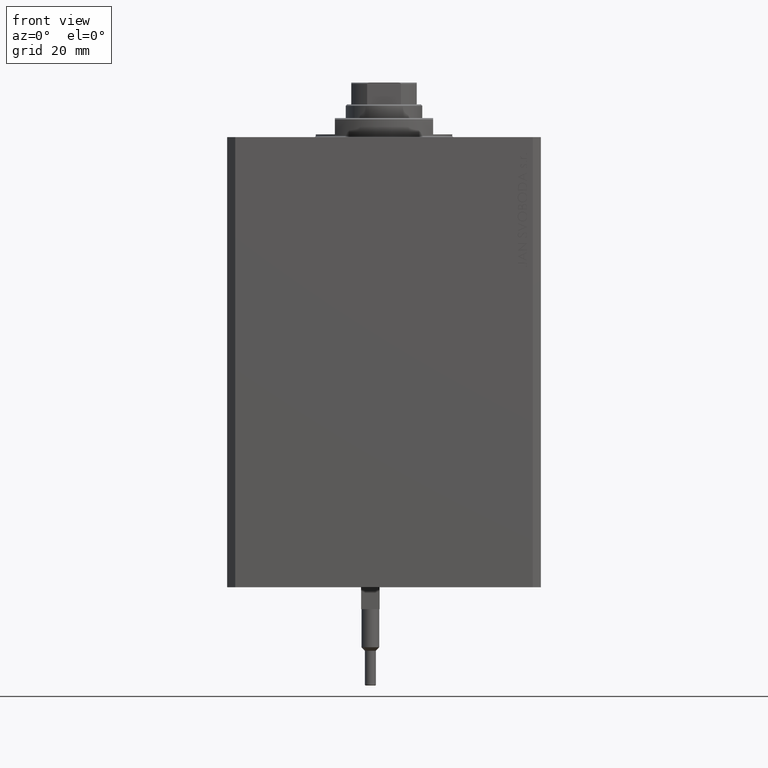
[diagram: clean part render]
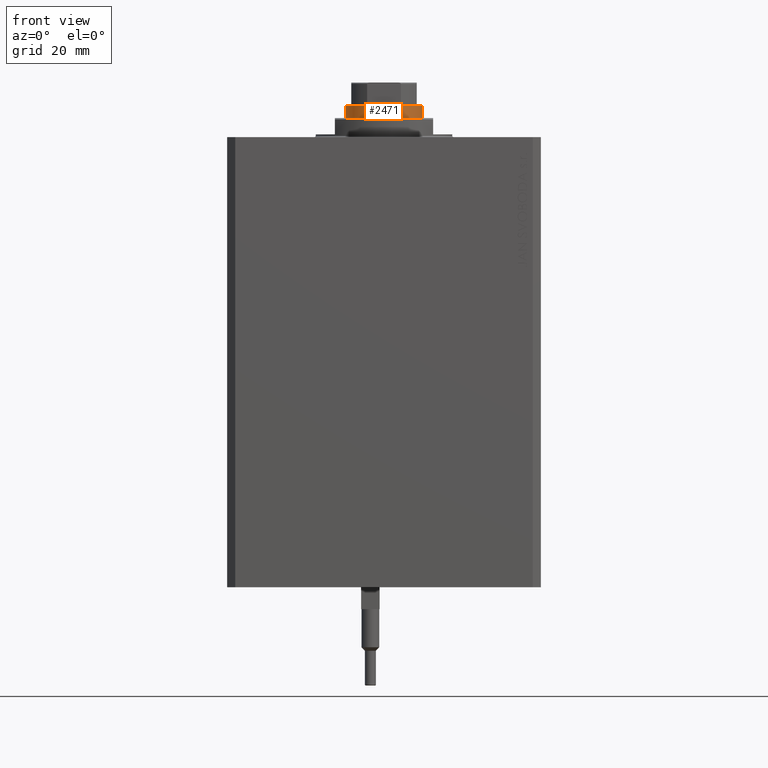
[diagram: same view with one face highlighted and labeled with its STEP entity id]
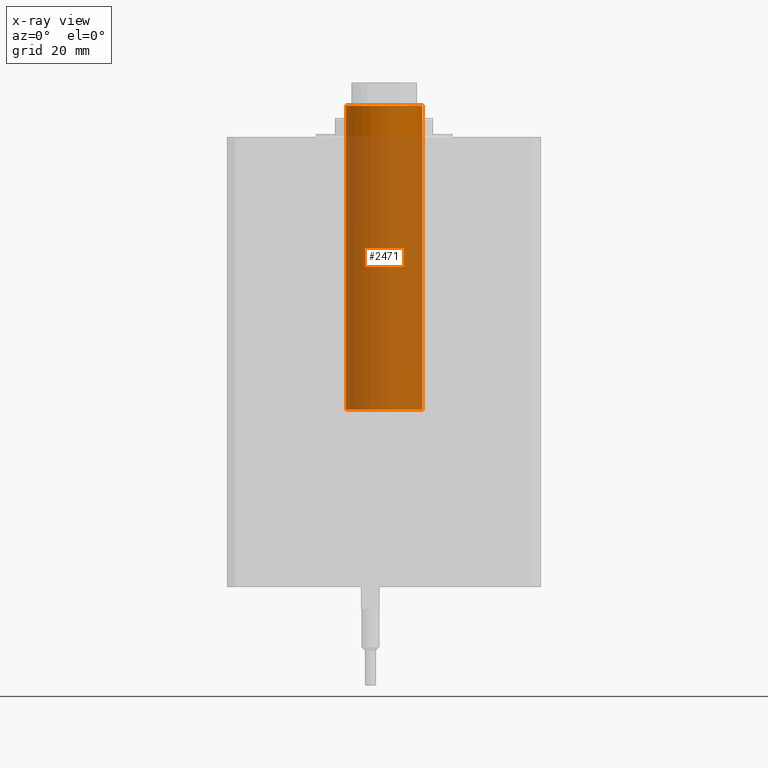
[diagram: x-ray of the same camera — body ghosted, the highlighted face saturated]
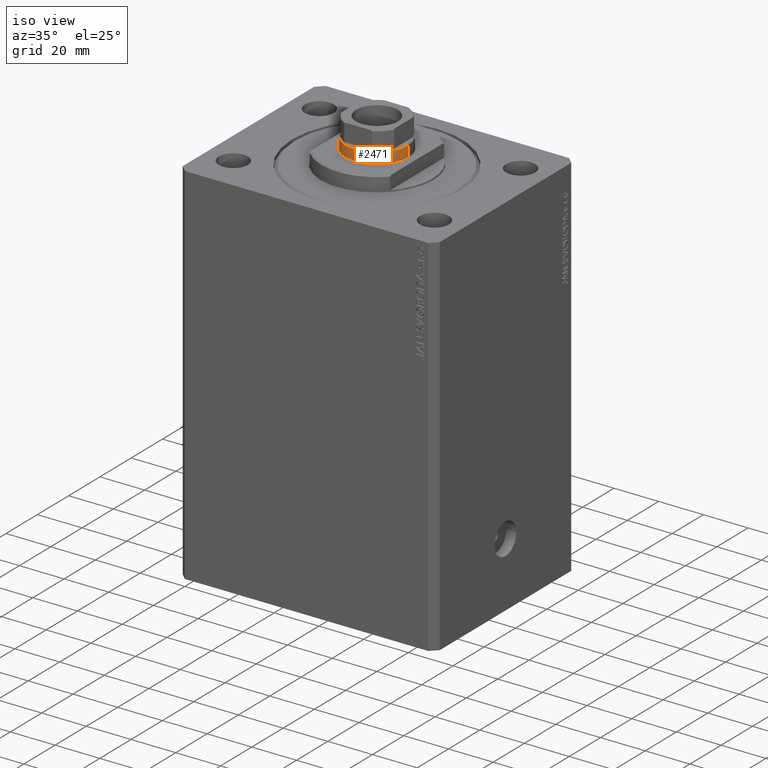
[diagram: same view with one face highlighted and labeled with its STEP entity id]
A machine part, front view. The second image highlights one B-rep face of the part: STEP entity #2471.
The next image is the same camera in x-ray: the body ghosted, the highlighted face saturated — about 90% of this face is hidden behind the body in this view.
A second angle (iso view) of the same face is appended — the face is thin or edge-on in the first view.
In plain terms, the highlighted cylindrical surface (partial cylindrical patch) has radius 14 mm, axis along (-0, -0, -1).
Its self-contained STEP definition (entity closure, byte-faithful):
#2471 = ADVANCED_FACE ( 'NONE', ( #11275 ), #25893, .T. ) ;
#2589 = CARTESIAN_POINT ( 'NONE',  ( 14.00000000000000000, 1.714505518806294638E-15, 47.10000000000000142 ) ) ;
#3318 = CARTESIAN_POINT ( 'NONE',  ( -14.00000000000000000, 0.000000000000000000, 47.10000000000000142 ) ) ;
#4977 = ORIENTED_EDGE ( 'NONE', *, *, #17988, .F. ) ;
#5222 = DIRECTION ( 'NONE',  ( 1.000000000000000000, 0.000000000000000000, 0.000000000000000000 ) ) ;
#6409 = CARTESIAN_POINT ( 'NONE',  ( -14.00000000000000000, 0.000000000000000000, 159.1000000000000227 ) ) ;
#8056 = DIRECTION ( 'NONE',  ( -0.000000000000000000, -0.000000000000000000, -1.000000000000000000 ) ) ;
#9079 = EDGE_CURVE ( 'NONE', #9936, #27647, #27992, .T. ) ;
#9773 = VERTEX_POINT ( 'NONE', #41874 ) ;
#9936 = VERTEX_POINT ( 'NONE', #3318 ) ;
#11275 = FACE_OUTER_BOUND ( 'NONE', #27193, .T. ) ;
#12186 = CARTESIAN_POINT ( 'NONE',  ( 14.00000000000000000, 1.714505518806294638E-15, 159.1000000000000227 ) ) ;
#16730 = ORIENTED_EDGE ( 'NONE', *, *, #9079, .T. ) ;
#17712 = CARTESIAN_POINT ( 'NONE',  ( 0.000000000000000000, 0.000000000000000000, 158.6000000000000512 ) ) ;
#17988 = EDGE_CURVE ( 'NONE', #9773, #27647, #45554, .T. ) ;
#19432 = AXIS2_PLACEMENT_3D ( 'NONE', #45644, #27371, #42217 ) ;
#20203 = EDGE_CURVE ( 'NONE', #25634, #9936, #36114, .T. ) ;
#22226 = ORIENTED_EDGE ( 'NONE', *, *, #33342, .T. ) ;
#23745 = ORIENTED_EDGE ( 'NONE', *, *, #20203, .T. ) ;
#24686 = CARTESIAN_POINT ( 'NONE',  ( -14.00000000000000000, 0.000000000000000000, 158.6000000000000512 ) ) ;
#25634 = VERTEX_POINT ( 'NONE', #24686 ) ;
#25893 = CYLINDRICAL_SURFACE ( 'NONE', #37243, 14.00000000000000000 ) ;
#26145 = CARTESIAN_POINT ( 'NONE',  ( 0.000000000000000000, 0.000000000000000000, 159.1000000000000227 ) ) ;
#27193 = EDGE_LOOP ( 'NONE', ( #4977, #22226, #23745, #16730 ) ) ;
#27371 = DIRECTION ( 'NONE',  ( 0.000000000000000000, 0.000000000000000000, 1.000000000000000000 ) ) ;
#27647 = VERTEX_POINT ( 'NONE', #2589 ) ;
#27992 = CIRCLE ( 'NONE', #19432, 14.00000000000000000 ) ;
#29035 = AXIS2_PLACEMENT_3D ( 'NONE', #17712, #44511, #5222 ) ;
#32214 = DIRECTION ( 'NONE',  ( -0.000000000000000000, -0.000000000000000000, -1.000000000000000000 ) ) ;
#33342 = EDGE_CURVE ( 'NONE', #9773, #25634, #44629, .T. ) ;
#34596 = VECTOR ( 'NONE', #8056, 1000.000000000000000 ) ;
#36114 = LINE ( 'NONE', #6409, #42370 ) ;
#37243 = AXIS2_PLACEMENT_3D ( 'NONE', #26145, #40985, #47557 ) ;
#40985 = DIRECTION ( 'NONE',  ( -0.000000000000000000, -0.000000000000000000, -1.000000000000000000 ) ) ;
#41874 = CARTESIAN_POINT ( 'NONE',  ( 14.00000000000000000, 1.714505518806294638E-15, 158.6000000000000512 ) ) ;
#42217 = DIRECTION ( 'NONE',  ( 1.000000000000000000, 0.000000000000000000, 0.000000000000000000 ) ) ;
#42370 = VECTOR ( 'NONE', #32214, 1000.000000000000000 ) ;
#44511 = DIRECTION ( 'NONE',  ( 0.000000000000000000, 0.000000000000000000, -1.000000000000000000 ) ) ;
#44629 = CIRCLE ( 'NONE', #29035, 14.00000000000000000 ) ;
#45554 = LINE ( 'NONE', #12186, #34596 ) ;
#45644 = CARTESIAN_POINT ( 'NONE',  ( 0.000000000000000000, 0.000000000000000000, 47.10000000000000142 ) ) ;
#47557 = DIRECTION ( 'NONE',  ( -1.000000000000000000, 0.000000000000000000, 0.000000000000000000 ) ) ;